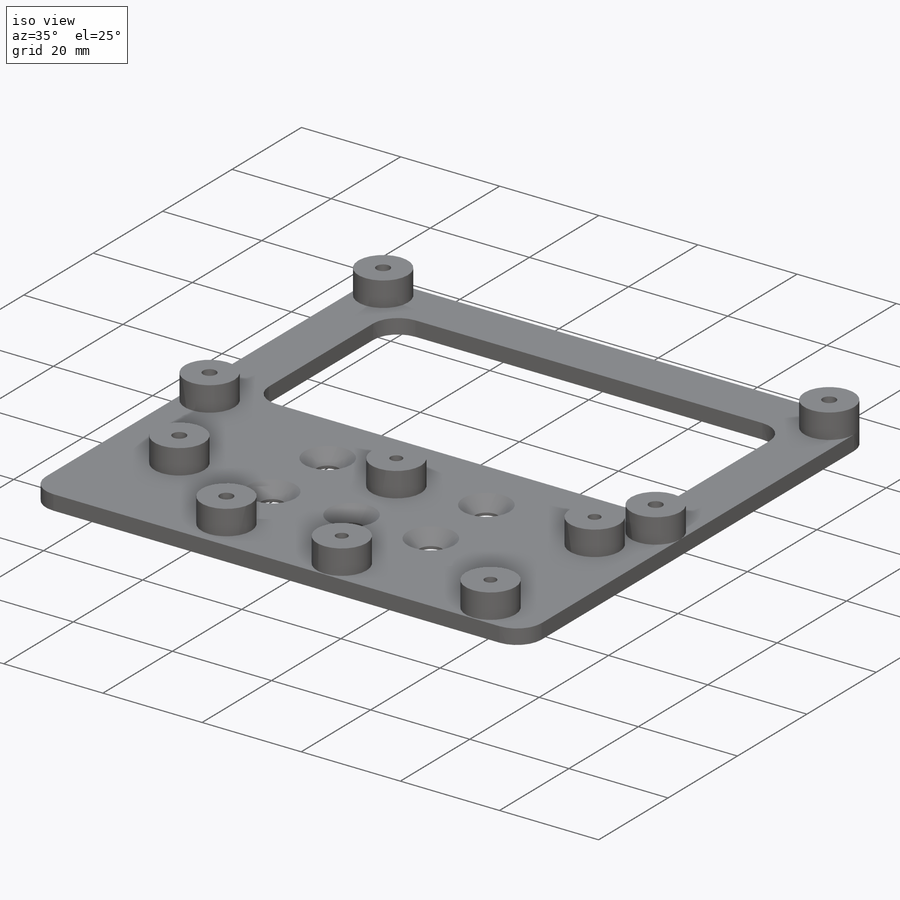
[diagram: iso view]
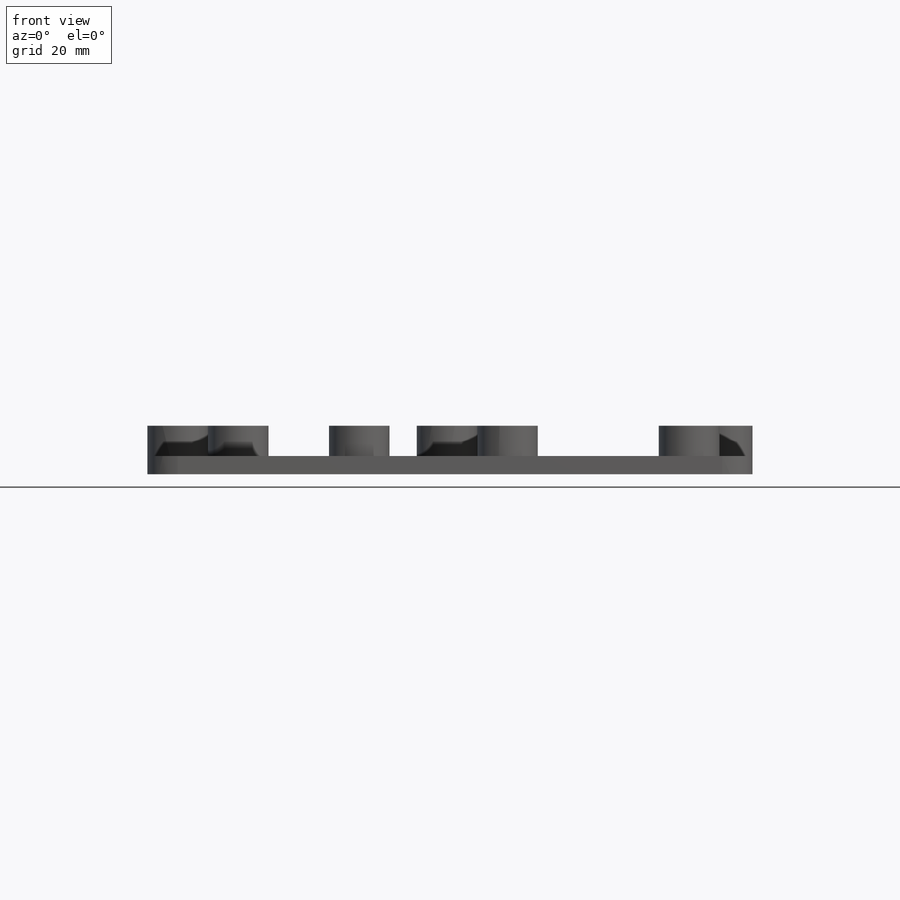
[diagram: front view]
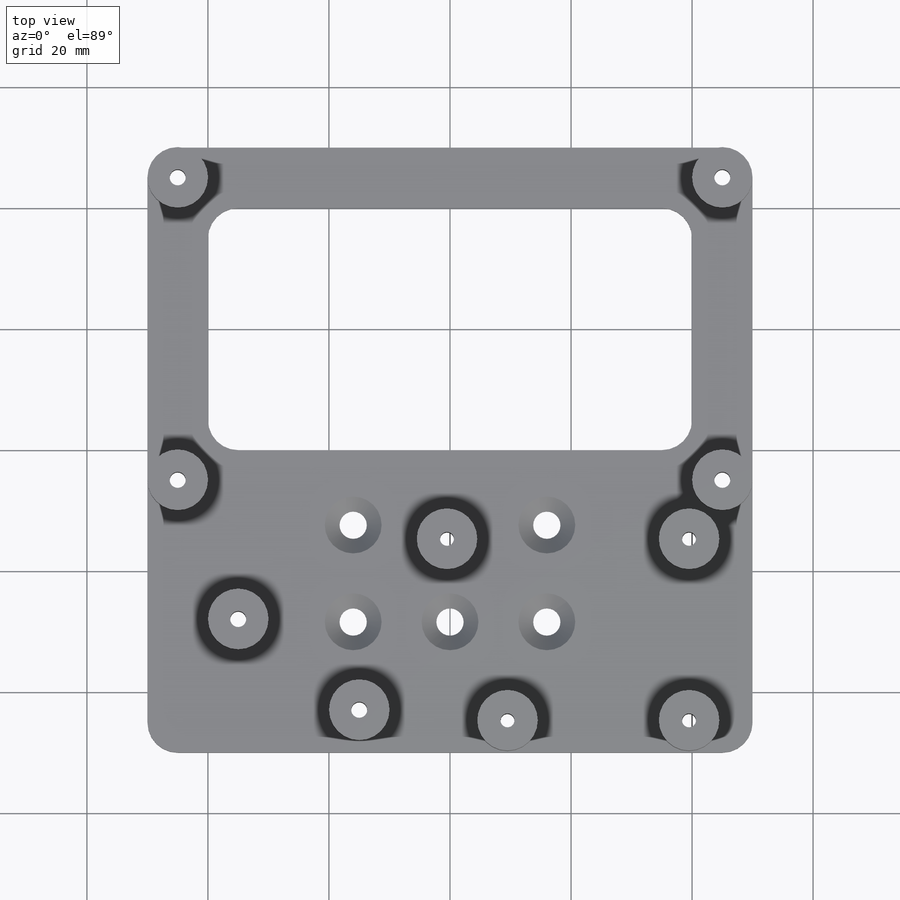
[diagram: top view]
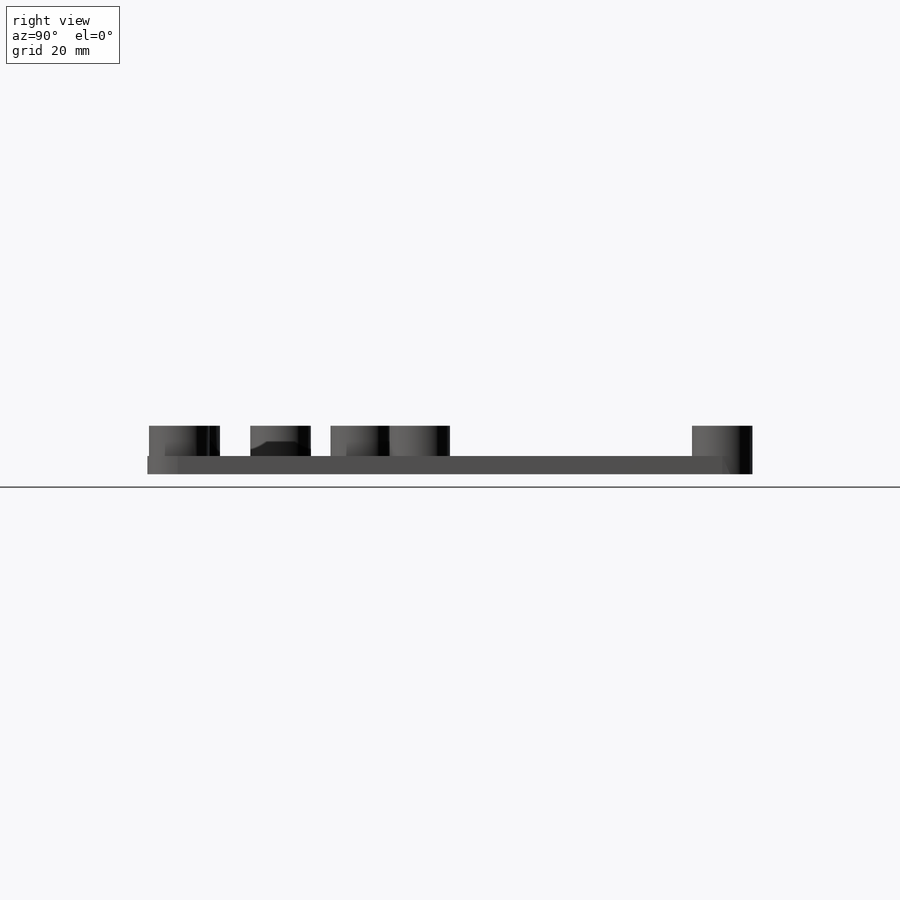
[diagram: right view]
SOLIDWORKS PART (.sldprt)
format: sldprt  version: not decoded by parser v0  size: 371,712 bytes
history: native  units: mm
features: sketch x8, extrude x3, cut_extrude x2, material x1, fillet x1, hole x1 (+13 scaffold rows collapsed)
feature tree (29):
  scaffold x13  (default folders/planes/origin — collapsed)
  material  "Material <not specified>"
  sketch  "Sketch1"  dims[D1=100.0mm D2=100.0mm]
  extrude  "Boss-Extrude1"  Depth=3mm
  sketch  "Sketch4"  dims[D1=10.0mm D2=90.0mm D3=50.0mm D4=5.0mm]
  extrude  "Boss-Extrude2"  Depth=5mm
  sketch  "Sketch6"
  extrude  "Boss-Extrude3"  Depth=5mm
  sketch  "Sketch5"  dims[D1=2.65mm D2=2.3mm]
  cut_extrude  "Cut-Extrude1"  [1 undecoded]
  sketch  "Sketch7"  dims[c1.D3=10.0mm c1.D5=10.0mm c1.D4=10.0mm c1.D1=40.0mm c1.D2=80.0mm c2.D3=15.0mm c2.D4=55.0mm c3.D3=7.0mm c3.D5=7.0mm c3.D4=7.0mm]
  cut_extrude  "Cut-Extrude2"  [1 undecoded]
  fillet  "Fillet2"  Radius=5mm
  sketch  "Sketch9"
  hole  "CSK for M4 Countersunk Flat Head Screw1"  Diameter=4.5mm Depth=3mm
  sketch  "Sketch12"
  sketch  "Sketch11"  dims[hole-wizard template sketch: 55 standard entries collapsed; hole parameters kept: c17.Thru Hole Depth=3.0mm c17.Near C'Sink Dia.=9.4mm c17.D4=~3.666174mm c17.Near C'Sink Angle=90.0deg]
decode coverage: 10 of 15 modeling features carry decoded parameters
note: ~ marks probable driven/reference dimensions
note: 2 parameter values undecoded
note: suppression state not decoded; provenance and decode notes live in map.json
